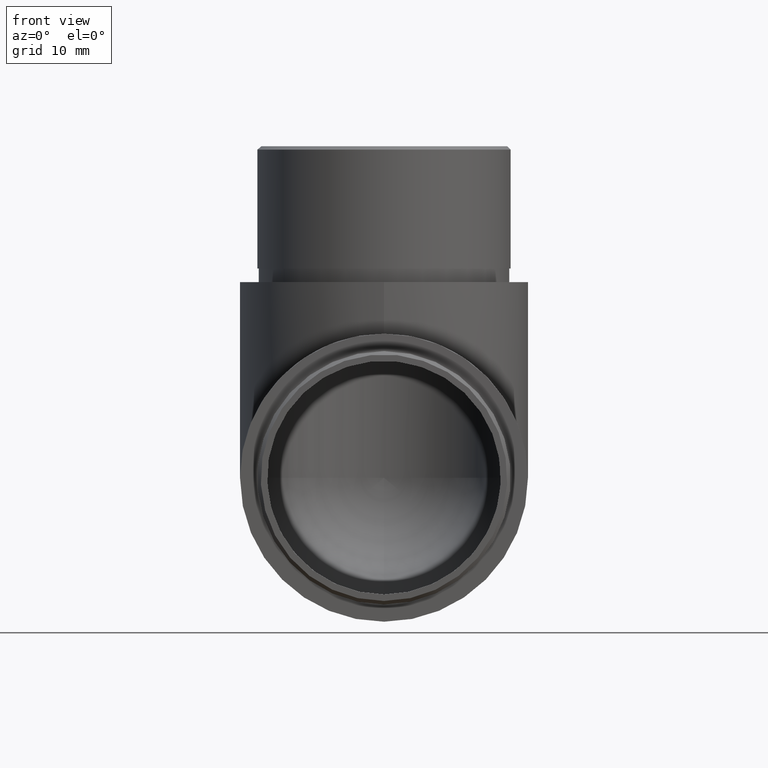
[diagram: clean part render]
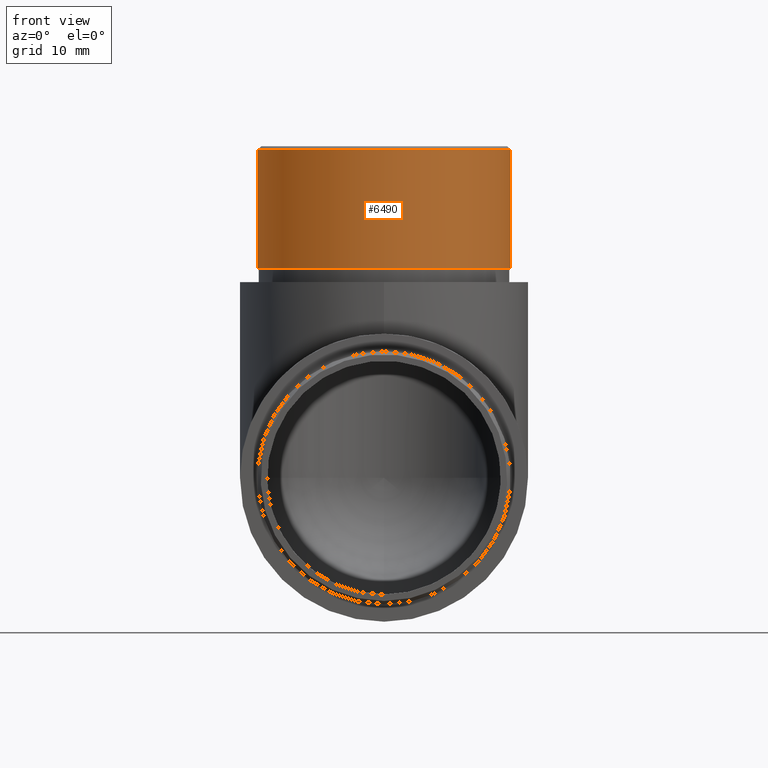
[diagram: same view with one face highlighted and labeled with its STEP entity id]
A machine part, front view. The second image highlights one B-rep face of the part: STEP entity #6490.
In plain terms, the highlighted cylindrical surface (bore or boss wall) has radius 18.65 mm, axis along (-0, -0, -1).
Its self-contained STEP definition (entity closure, byte-faithful):
#525 = FACE_OUTER_BOUND ( 'NONE', #3962, .T. ) ;
#643 = CIRCLE ( 'NONE', #8509, 18.64999999999999900 ) ;
#813 = ORIENTED_EDGE ( 'NONE', *, *, #9132, .T. ) ;
#1425 = DIRECTION ( 'NONE',  ( 0.0000000000000000000, 0.0000000000000000000, 1.000000000000000000 ) ) ;
#1628 = CARTESIAN_POINT ( 'NONE',  ( 18.65000000000000200, 28.80000000000000800, 69.49999999999997200 ) ) ;
#3231 = ORIENTED_EDGE ( 'NONE', *, *, #3933, .T. ) ;
#3602 = DIRECTION ( 'NONE',  ( 0.0000000000000000000, 0.0000000000000000000, -1.000000000000000000 ) ) ;
#3641 = CARTESIAN_POINT ( 'NONE',  ( 3.469446951953614200E-015, 28.80000000000000800, 69.49999999999997200 ) ) ;
#3933 = EDGE_CURVE ( 'NONE', #5049, #5049, #8575, .T. ) ;
#3962 = EDGE_LOOP ( 'NONE', ( #813 ) ) ;
#5049 = VERTEX_POINT ( 'NONE', #10189 ) ;
#6233 = DIRECTION ( 'NONE',  ( 1.000000000000000000, 0.0000000000000000000, 0.0000000000000000000 ) ) ;
#6490 = ADVANCED_FACE ( 'NONE', ( #525, #11244 ), #10781, .T. ) ;
#7127 = CARTESIAN_POINT ( 'NONE',  ( 3.469446951953614200E-015, 28.80000000000000800, 70.00000000000000000 ) ) ;
#8043 = DIRECTION ( 'NONE',  ( -0.0000000000000000000, -0.0000000000000000000, -1.000000000000000000 ) ) ;
#8509 = AXIS2_PLACEMENT_3D ( 'NONE', #3641, #3602, #10218 ) ;
#8575 = CIRCLE ( 'NONE', #9596, 18.64999999999999900 ) ;
#9132 = EDGE_CURVE ( 'NONE', #10124, #10124, #643, .T. ) ;
#9596 = AXIS2_PLACEMENT_3D ( 'NONE', #9933, #1425, #6233 ) ;
#9933 = CARTESIAN_POINT ( 'NONE',  ( 3.469446951953614200E-015, 28.80000000000000800, 52.00000000000000700 ) ) ;
#10124 = VERTEX_POINT ( 'NONE', #1628 ) ;
#10189 = CARTESIAN_POINT ( 'NONE',  ( 18.65000000000000200, 28.80000000000000800, 52.00000000000000700 ) ) ;
#10218 = DIRECTION ( 'NONE',  ( 1.000000000000000000, 0.0000000000000000000, 0.0000000000000000000 ) ) ;
#10409 = DIRECTION ( 'NONE',  ( -1.000000000000000000, 0.0000000000000000000, 0.0000000000000000000 ) ) ;
#10594 = AXIS2_PLACEMENT_3D ( 'NONE', #7127, #8043, #10409 ) ;
#10781 = CYLINDRICAL_SURFACE ( 'NONE', #10594, 18.64999999999999900 ) ;
#11244 = FACE_OUTER_BOUND ( 'NONE', #12333, .T. ) ;
#12333 = EDGE_LOOP ( 'NONE', ( #3231 ) ) ;